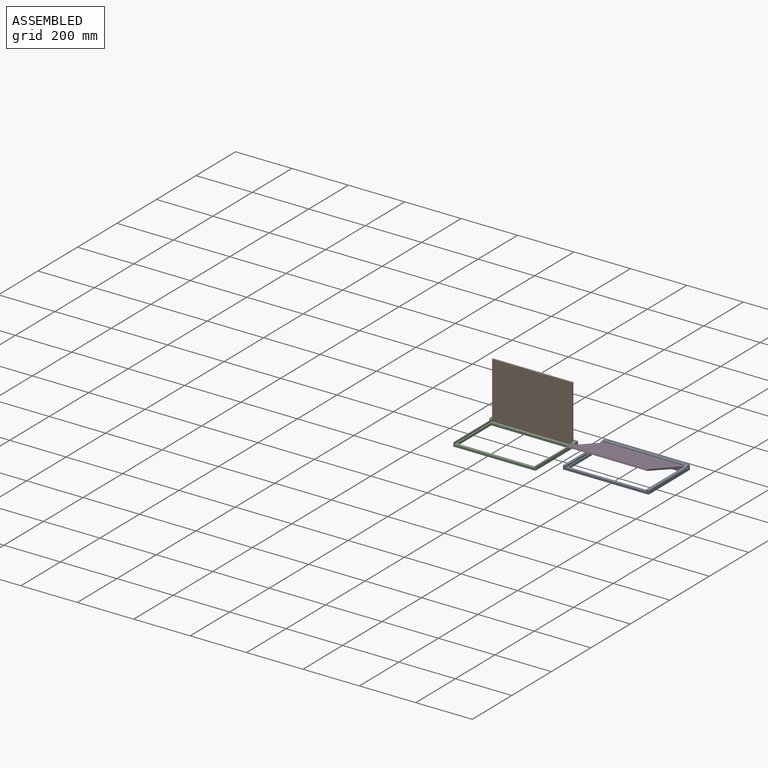
[diagram: assembled view]
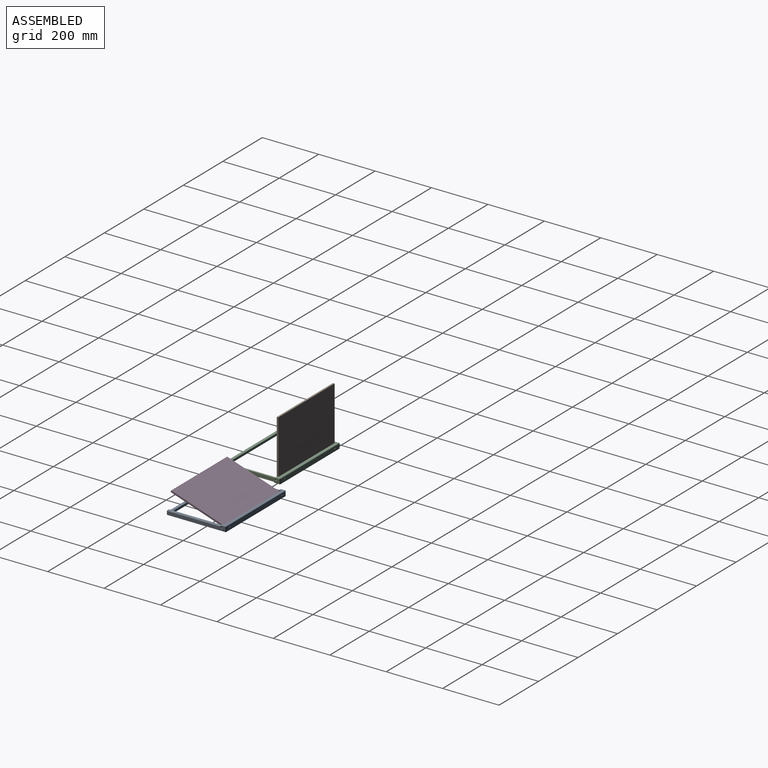
[diagram: assembled view, second angle]
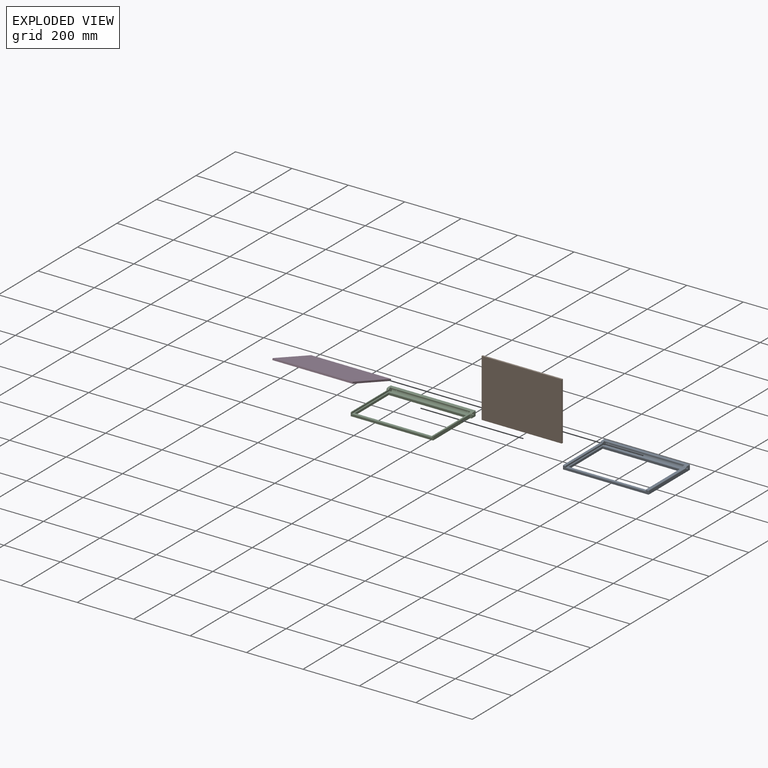
[diagram: exploded view]
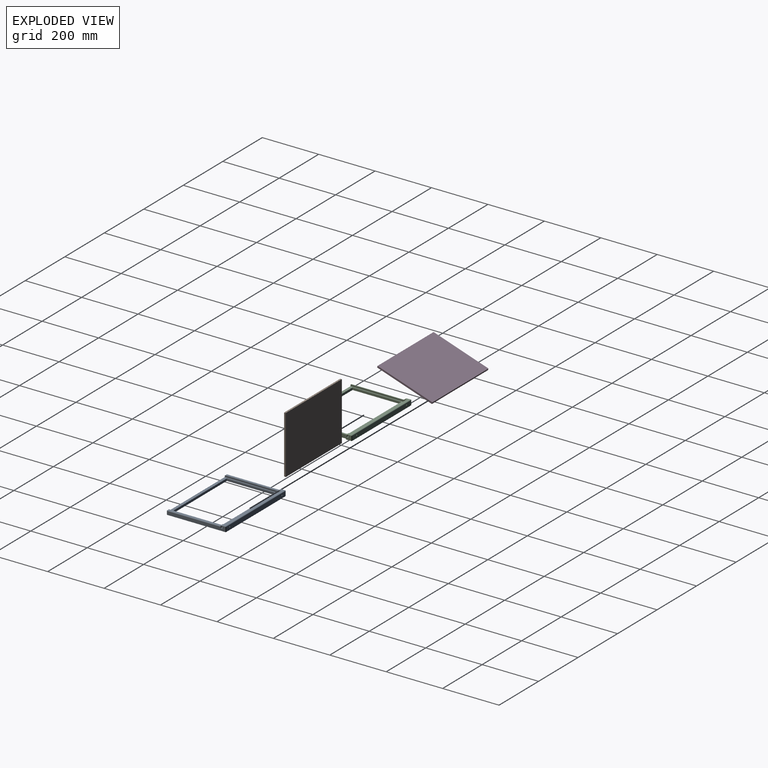
[diagram: exploded view, second angle]
ASSEMBLY  parts=4 mates=2
PART A: 63 faces, bbox 304.5x210x18.6 mm
  f0: cylinder r=9mm len=284.5mm, axis (1,0,0), area 5734.3mm2, adj f1,f14,f15,f28,f61,f62
  f1: plane 204x16mm, normal (-1,0,0), area 1300.7mm2, adj f0,f2,f3,f4,f8,f9,f12,f13
  f2: cylinder r=7mm len=8mm, axis (-1,0,0), area 63.2mm2, adj f1,f3,f8,f23
  f3: plane 186.68x8mm, normal (0,0,1), area 1493.4mm2, adj f1,f2,f20,f22
  f4: plane 300.5x12mm, normal (0,-1,0), area 2468mm2, adj f1,f5,f16,f19,f20,f28,f34,f35
  f5: plane 304.5x210mm, normal (0,0,-1), area 16120.6mm2, adj f4,f6,f10,f11,f17,f19,f26,f27
  f6: plane 300.5x16mm, normal (0,1,0), area 4780.3mm2, adj f5,f7,f26,f41,f61,f62
  f7: cylinder r=2mm len=300.5mm, axis (-1,0,0), area 944mm2, adj f6,f8,f25,f40
  f8: plane 300.5x13mm, normal (0,0,1), area 2484mm2, adj f1,f2,f7,f12,f24,f28,f29,f39
  f9: cylinder r=1.5mm len=8mm, axis (-1,0,0), area 75.4mm2, adj f1,f18
  f10: plane 206x16mm, normal (1,0,0), area 2500.2mm2, adj f5,f18,f19,f22,f23,f24,f26
  f11: plane 276.5x8mm, normal (0,-1,0), area 2212mm2, adj f5,f16,f27,f42
  f12: cylinder r=2mm len=284.5mm, axis (1,0,0), area 893.8mm2, adj f1,f8,f13,f28
  f13: plane 284.5x2mm, normal (0,-1,0), area 569mm2, adj f1,f12,f14,f28
  f14: plane 284.5x5.49mm, normal (0,0,-1), area 1560.6mm2, adj f0,f1,f13,f28
  f15: plane 284.5x5.49mm, normal (0,1,0), area 1560.6mm2, adj f0,f1,f16,f28
  f16: plane 284.5x192mm, normal (0,0,1), area 6927.8mm2, adj f1,f4,f11,f15,f17,f27,f28,f42
  f17: plane 276.5x8mm, normal (0,1,0), area 2212mm2, adj f5,f16,f27,f42
  f18: cone r=1.5mm half-angle=45deg, axis (1,0,0), area 44.4mm2, adj f9,f10
  f19: cylinder r=2mm len=12mm, axis (0,0,1), area 37.7mm2, adj f4,f5,f10,f21
  f20: cylinder r=2mm len=8mm, axis (1,0,0), area 25.1mm2, adj f1,f3,f4,f21
  f21: sphere r=2mm, area 6.3mm2, adj f19,f20,f22
  f22: cylinder r=2mm len=188.1mm, axis (0,1,0), area 588mm2, adj f3,f10,f21,f23
  f23: torus R=5mm, axis (1,0,0), area 23.6mm2, adj f2,f10,f22,f24
  f24: cylinder r=2mm len=13mm, axis (0,1,0), area 40.8mm2, adj f8,f10,f23,f25
  f25: sphere r=2mm, area 6.3mm2, adj f7,f24,f26
  f26: cylinder r=2mm len=16mm, axis (0,0,-1), area 50.3mm2, adj f5,f6,f10,f25
  f27: plane 172.5x8mm, normal (-1,0,0), area 1380mm2, adj f5,f11,f16,f17
  f28: plane 204x16mm, normal (1,0,0), area 1300.7mm2, adj f0,f4,f8,f12,f13,f14,f15,f16
  f29: cylinder r=7mm len=8mm, axis (1,0,0), area 63.2mm2, adj f8,f28,f30,f38
  f30: plane 186.68x8mm, normal (0,0,1), area 1493.4mm2, adj f28,f29,f35,f37
  f31: cylinder r=1.5mm len=8mm, axis (1,0,0), area 75.4mm2, adj f28,f33
  f32: plane 206x16mm, normal (-1,0,0), area 2500.2mm2, adj f5,f33,f34,f37,f38,f39,f41
  f33: cone r=1.5mm half-angle=45deg, axis (-1,0,0), area 44.4mm2, adj f31,f32
  f34: cylinder r=2mm len=12mm, axis (0,0,1), area 37.7mm2, adj f4,f5,f32,f36
  f35: cylinder r=2mm len=8mm, axis (-1,0,0), area 25.1mm2, adj f4,f28,f30,f36
  f36: sphere r=2mm, area 6.3mm2, adj f34,f35,f37
  f37: cylinder r=2mm len=188.1mm, axis (0,1,0), area 588mm2, adj f30,f32,f36,f38
  f38: torus R=5mm, axis (-1,0,0), area 23.6mm2, adj f29,f32,f37,f39
  f39: cylinder r=2mm len=13mm, axis (0,1,0), area 40.8mm2, adj f8,f32,f38,f40
  f40: sphere r=2mm, area 6.3mm2, adj f7,f39,f41
  f41: cylinder r=2mm len=16mm, axis (0,0,-1), area 50.3mm2, adj f5,f6,f32,f40
  f42: plane 172.5x8mm, normal (1,0,0), area 1380mm2, adj f5,f11,f16,f17
  f43: cone r=0mm half-angle=59deg, axis (0,0,-1), area 16.2mm2, adj f44
  f44: cylinder r=2.1mm len=6.5mm, axis (0,0,-1), area 85.8mm2, adj f5,f43
  f45: cone r=0mm half-angle=59deg, axis (0,0,-1), area 16.2mm2, adj f46
  f46: cylinder r=2.1mm len=6.5mm, axis (0,0,-1), area 85.8mm2, adj f5,f45
  f47: cone r=0mm half-angle=59deg, axis (0,0,-1), area 16.2mm2, adj f48
  f48: cylinder r=2.1mm len=6.5mm, axis (0,0,-1), area 85.8mm2, adj f5,f47
  f49: cone r=0mm half-angle=59deg, axis (0,0,-1), area 16.2mm2, adj f50
  f50: cylinder r=2.1mm len=6.5mm, axis (0,0,-1), area 85.8mm2, adj f5,f49
  f51: cone r=0mm half-angle=59deg, axis (0,0,-1), area 16.2mm2, adj f52
  f52: cylinder r=2.1mm len=6.5mm, axis (0,0,-1), area 85.8mm2, adj f5,f51
  f53: cone r=0mm half-angle=59deg, axis (0,0,-1), area 16.2mm2, adj f54
  f54: cylinder r=2.1mm len=6.5mm, axis (0,0,-1), area 85.8mm2, adj f5,f53
  f55: cone r=0mm half-angle=59deg, axis (0,0,-1), area 16.2mm2, adj f56
  f56: cylinder r=2.1mm len=6.5mm, axis (0,0,-1), area 85.8mm2, adj f5,f55
  f57: cone r=0mm half-angle=59deg, axis (0,0,-1), area 16.2mm2, adj f58
  f58: cylinder r=2.1mm len=6.5mm, axis (0,0,-1), area 85.8mm2, adj f5,f57
  f59: cone r=0mm half-angle=59deg, axis (0,0,-1), area 16.2mm2, adj f60
  f60: cylinder r=2.1mm len=6.5mm, axis (0,0,-1), area 85.8mm2, adj f5,f59
  f61: cylinder r=2.1mm len=6.55mm, axis (0,1,0), area 81.6mm2, adj f0,f6
  f62: cylinder r=2.1mm len=6.55mm, axis (0,1,0), area 81.6mm2, adj f0,f6
PART B: 10 faces, bbox 284x205x6 mm
  f0: plane 284x6mm, normal (0,-1,0), area 1704mm2, adj f1,f3,f4,f5
  f1: plane 205x6mm, normal (1,0,0), area 1225.1mm2, adj f0,f2,f4,f5,f8
  f2: plane 284x6mm, normal (0,1,0), area 1704mm2, adj f1,f3,f4,f5
  f3: plane 205x6mm, normal (-1,0,0), area 1225.1mm2, adj f0,f2,f4,f5,f6
  f4: plane 284x205mm, normal (0,0,1), area 58220mm2, adj f0,f1,f2,f3
  f5: plane 284x205mm, normal (0,0,-1), area 58220mm2, adj f0,f1,f2,f3
  f6: cylinder r=1.25mm len=10mm, axis (-1,0,0), area 78.5mm2, adj f3,f7
  f7: plane 2.5x2.5mm, normal (-1,0,0), area 4.9mm2, adj f6
  f8: cylinder r=1.25mm len=10mm, axis (1,0,0), area 78.5mm2, adj f1,f9
  f9: plane 2.5x2.5mm, normal (1,0,0), area 4.9mm2, adj f8
PART C: 77 faces, bbox 302.5x210x18.6 mm
  f0: cylinder r=9mm len=284.5mm, axis (1,0,0), area 5287.4mm2, adj f1,f13,f18,f35,f75,f76
  f1: plane 204x16mm, normal (-1,0,0), area 1293.2mm2, adj f0,f2,f3,f4,f8,f9,f13,f14
  f2: cylinder r=7mm len=7mm, axis (-1,0,0), area 55.3mm2, adj f1,f8,f11,f22,f30,f32,f33
  f3: plane 185.52x2mm, normal (0,0,1), area 371mm2, adj f1,f27,f31,f33
  f4: plane 288.5x12mm, normal (0,-1,0), area 2324mm2, adj f1,f5,f14,f26,f27,f35,f48,f49
  f5: plane 302.5x210mm, normal (0,0,-1), area 13820.6mm2, adj f4,f6,f10,f11,f12,f15,f19,f21
  f6: plane 298.5x16mm, normal (0,1,0), area 4748.3mm2, adj f5,f7,f25,f47,f75,f76
  f7: cylinder r=2mm len=298.5mm, axis (-1,0,0), area 937.8mm2, adj f6,f8,f24,f46
  f8: plane 298.5x13mm, normal (0,0,1), area 2686.9mm2, adj f1,f2,f7,f16,f23,f35,f36,f45
  f9: cylinder r=1.4mm len=7mm, axis (-1,0,0), area 61.6mm2, adj f1,f20
  f10: plane 184.06x12mm, normal (1,0,0), area 2208mm2, adj f5,f26,f28,f30,f31
  f11: plane 11x1mm, normal (0,-1,0), area 11mm2, adj f2,f5,f21,f28
  f12: plane 18x16mm, normal (1,0,0), area 246.3mm2, adj f5,f20,f21,f22,f23,f25
  f13: plane 284.5x5.88mm, normal (0,0.98,0.17), area 1697.9mm2, adj f0,f1,f14,f35
  f14: plane 284.5x192.48mm, normal (0,0,1), area 7065.1mm2, adj f1,f4,f13,f15,f19,f34,f35,f56
  f15: plane 276.5x8mm, normal (0,-1,0), area 2212mm2, adj f5,f14,f34,f56
  f16: cylinder r=2mm len=284.5mm, axis (1,0,0), area 993.1mm2, adj f1,f8,f17,f35
  f17: plane 284.5x1.65mm, normal (0,-0.98,-0.17), area 477.4mm2, adj f1,f16,f18,f35
  f18: plane 284.5x5.97mm, normal (0,0,-1), area 1697.9mm2, adj f0,f1,f17,f35
  f19: plane 276.5x8mm, normal (0,1,0), area 2212mm2, adj f5,f14,f34,f56
  f20: cone r=1.4mm half-angle=45deg, axis (1,0,0), area 42.7mm2, adj f9,f12
  f21: cylinder r=2mm len=11mm, axis (0,0,1), area 34.6mm2, adj f5,f11,f12,f22
  f22: torus R=5mm, axis (1,0,0), area 31mm2, adj f2,f12,f21,f23
  f23: cylinder r=2mm len=13mm, axis (0,1,0), area 40.8mm2, adj f8,f12,f22,f24
  f24: sphere r=2mm, area 6.3mm2, adj f7,f23,f25
  f25: cylinder r=2mm len=16mm, axis (0,0,-1), area 50.3mm2, adj f5,f6,f12,f24
  f26: cylinder r=2mm len=12mm, axis (0,0,1), area 37.7mm2, adj f4,f5,f10,f29
  f27: cylinder r=2mm len=2mm, axis (1,0,0), area 6.3mm2, adj f1,f3,f4,f29
  f28: cylinder r=2mm len=11mm, axis (0,0,-1), area 34.6mm2, adj f5,f10,f11,f30
  f29: sphere r=2mm, area 6.3mm2, adj f26,f27,f31
  f30: torus R=9mm, axis (1,0,0), area 2.7mm2, adj f2,f10,f28,f32
  f31: cylinder r=2mm len=185.52mm, axis (0,1,0), area 580.7mm2, adj f3,f10,f29,f32
  f32: bspline ~4.78x3.44mm, area 10.6mm2, adj f2,f30,f31,f33
  f33: cylinder r=2mm len=2mm, axis (-1,0,0), area 3.9mm2, adj f1,f2,f3,f32
  f34: plane 172.5x8mm, normal (-1,0,0), area 1380mm2, adj f5,f14,f15,f19
  f35: plane 204x16mm, normal (1,0,0), area 1293.2mm2, adj f0,f4,f8,f13,f14,f16,f17,f18
  f36: cylinder r=7mm len=7mm, axis (1,0,0), area 55.3mm2, adj f8,f35,f40,f44,f52,f54,f55
  f37: plane 185.52x2mm, normal (0,0,1), area 371mm2, adj f35,f49,f53,f55
  f38: cylinder r=1.4mm len=7mm, axis (1,0,0), area 61.6mm2, adj f35,f42
  f39: plane 184.06x12mm, normal (-1,0,0), area 2208mm2, adj f5,f48,f50,f52,f53
  f40: plane 11x1mm, normal (0,-1,0), area 11mm2, adj f5,f36,f43,f50
  f41: plane 18x16mm, normal (-1,0,0), area 246.3mm2, adj f5,f42,f43,f44,f45,f47
  f42: cone r=1.4mm half-angle=45deg, axis (-1,0,0), area 42.7mm2, adj f38,f41
  f43: cylinder r=2mm len=11mm, axis (0,0,1), area 34.6mm2, adj f5,f40,f41,f44
  f44: torus R=5mm, axis (-1,0,0), area 31mm2, adj f36,f41,f43,f45
  f45: cylinder r=2mm len=13mm, axis (0,1,0), area 40.8mm2, adj f8,f41,f44,f46
  f46: sphere r=2mm, area 6.3mm2, adj f7,f45,f47
  f47: cylinder r=2mm len=16mm, axis (0,0,-1), area 50.3mm2, adj f5,f6,f41,f46
  f48: cylinder r=2mm len=12mm, axis (0,0,1), area 37.7mm2, adj f4,f5,f39,f51
  f49: cylinder r=2mm len=2mm, axis (-1,0,0), area 6.3mm2, adj f4,f35,f37,f51
  f50: cylinder r=2mm len=11mm, axis (0,0,-1), area 34.6mm2, adj f5,f39,f40,f52
  f51: sphere r=2mm, area 6.3mm2, adj f48,f49,f53
  f52: torus R=9mm, axis (-1,0,0), area 2.7mm2, adj f36,f39,f50,f54
  f53: cylinder r=2mm len=185.52mm, axis (0,1,0), area 580.7mm2, adj f37,f39,f51,f54
  f54: bspline ~4.78x3.44mm, area 10.6mm2, adj f36,f52,f53,f55
  f55: cylinder r=2mm len=2mm, axis (1,0,0), area 3.9mm2, adj f35,f36,f37,f54
  f56: plane 172.5x8mm, normal (1,0,0), area 1380mm2, adj f5,f14,f15,f19
  f57: cone r=0mm half-angle=59deg, axis (0,0,-1), area 16.2mm2, adj f58
  f58: cylinder r=2.1mm len=6.5mm, axis (0,0,-1), area 85.8mm2, adj f5,f57
  f59: cone r=0mm half-angle=59deg, axis (0,0,-1), area 16.2mm2, adj f60
  f60: cylinder r=2.1mm len=6.5mm, axis (0,0,-1), area 85.8mm2, adj f5,f59
  f61: cone r=0mm half-angle=59deg, axis (0,0,-1), area 16.2mm2, adj f62
  f62: cylinder r=2.1mm len=6.5mm, axis (0,0,-1), area 85.8mm2, adj f5,f61
  f63: cone r=0mm half-angle=59deg, axis (0,0,-1), area 16.2mm2, adj f64
  f64: cylinder r=2.1mm len=6.5mm, axis (0,0,-1), area 85.8mm2, adj f5,f63
  f65: cone r=0mm half-angle=59deg, axis (0,0,-1), area 16.2mm2, adj f66
  f66: cylinder r=2.1mm len=6.5mm, axis (0,0,-1), area 85.8mm2, adj f5,f65
  f67: cone r=0mm half-angle=59deg, axis (0,0,-1), area 16.2mm2, adj f68
  f68: cylinder r=2.1mm len=6.5mm, axis (0,0,-1), area 85.8mm2, adj f5,f67
  f69: cone r=0mm half-angle=59deg, axis (0,0,-1), area 16.2mm2, adj f70
  f70: cylinder r=2.1mm len=6.5mm, axis (0,0,-1), area 85.8mm2, adj f5,f69
  f71: cone r=0mm half-angle=59deg, axis (0,0,-1), area 16.2mm2, adj f72
  f72: cylinder r=2.1mm len=6.5mm, axis (0,0,-1), area 85.8mm2, adj f5,f71
  f73: cone r=0mm half-angle=59deg, axis (0,0,-1), area 16.2mm2, adj f74
  f74: cylinder r=2.1mm len=6.5mm, axis (0,0,-1), area 85.8mm2, adj f5,f73
  f75: cylinder r=2.1mm len=6.55mm, axis (0,1,0), area 81.6mm2, adj f0,f6
  f76: cylinder r=2.1mm len=6.55mm, axis (0,1,0), area 81.6mm2, adj f0,f6
PART D: same geometry as B
PLACE A t=(247.66,87.33,51.84)mm fixed
PLACE B rot(axis=(-1,0,0),90deg) t=(-249.71,116.72,151.08)mm
PLACE C t=(-107.46,30.22,53.58)mm fixed
PLACE D rot(axis=(-1,0,0),18.5deg) t=(105.41,86.25,81.93)mm
MATE revolute B.f6 <-> C.f0  axis (-1,0,0) through (-391.71,119.72,56.58)mm
MATE revolute D.f6 <-> A.f0  axis (1,0,0) through (247.41,176.83,54.84)mm
